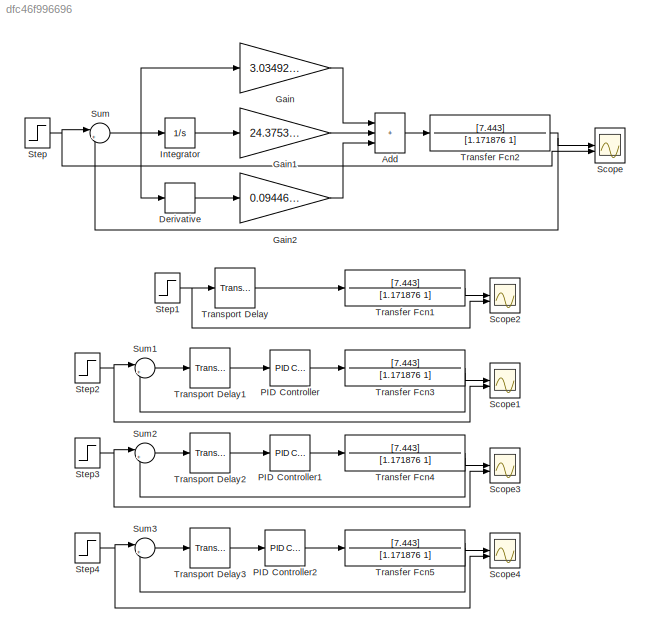
MODEL slx_dfc46f996696
KIND model
CONFIG AbsTol = auto
CONFIG EnableMultiTasking = off
CONFIG FixedStep = auto
CONFIG MaxStep = auto
CONFIG MinStep = auto
CONFIG RelTol = 1e-3
CONFIG SampleTimeConstraint = Unconstrained
CONFIG SolverName = VariableStepAuto
CONFIG StartTime = 0.0
CONFIG StopTime = 3
BLOCK [Sum] Add
  IconShape = rectangular
  Inputs = +++
BLOCK [Derivative] Derivative
BLOCK [Gain] Gain
  Gain = 3.034922642
BLOCK [Gain] Gain1
  Gain = 24.37532241
BLOCK [Gain] Gain2
  Gain = 0.094468037
BLOCK [Integrator] Integrator
BLOCK [Reference] PID Controller  REF=slpidlib/PID Controller
  LibrarySourceBlock = simulink/Continuous/PID Controller
  SourceBlock = slpidlib/PID Controller
  SourceType = PID 1dof
BLOCK [Reference] PID Controller1  REF=slpidlib/PID Controller
  LibrarySourceBlock = simulink/Continuous/PID Controller
  SourceBlock = slpidlib/PID Controller
  SourceType = PID 1dof
BLOCK [Reference] PID Controller2  REF=slpidlib/PID Controller
  LibrarySourceBlock = simulink/Continuous/PID Controller
  SourceBlock = slpidlib/PID Controller
  SourceType = PID 1dof
BLOCK [Scope] Scope
  Floating = off
  NumInputPorts = 2
  ScopeSpecificationString = Simulink.scopes.TimeScopeBlockCfg('CurrentConfiguration', extmgr.ConfigurationSet(extmgr.Configuration('Core','General UI',true),extmgr.Configuration('Core','Source UI',true),extmgr.Configuration('Sources','WiredSimulink',true,'SampleTime','0.025'),extmgr.Configuration('Visuals','Time Domain',true,'SerializedDisplays',{struct('MinYLimReal','-0.75917','MaxYLimReal','6.83254','YLabelReal','','MinYLi...<+1431ch>
BLOCK [Scope] Scope1
  Floating = off
  NumInputPorts = 2
  ScopeSpecificationString = Simulink.scopes.TimeScopeBlockCfg('CurrentConfiguration', extmgr.ConfigurationSet(extmgr.Configuration('Core','General UI',true),extmgr.Configuration('Core','Source UI',true),extmgr.Configuration('Sources','WiredSimulink',true,'DataLoggingVariableName','ScopeData1','SampleTime','0.025'),extmgr.Configuration('Visuals','Time Domain',true,'SerializedDisplays',{struct('MinYLimReal','-0.64368','MaxYLim...<+1497ch>
BLOCK [Scope] Scope2
  Floating = off
  NumInputPorts = 2
  ScopeSpecificationString = Simulink.scopes.TimeScopeBlockCfg('CurrentConfiguration', extmgr.ConfigurationSet(extmgr.Configuration('Core','General UI',true),extmgr.Configuration('Core','Source UI',true),extmgr.Configuration('Sources','WiredSimulink',true,'DataLoggingVariableName','ScopeData2','SampleTime','0.025'),extmgr.Configuration('Visuals','Time Domain',true,'SerializedDisplays',{struct('MinYLimReal','-4.27264','MaxYLim...<+1475ch>
BLOCK [Scope] Scope3
  Floating = off
  NumInputPorts = 2
  ScopeSpecificationString = Simulink.scopes.TimeScopeBlockCfg('CurrentConfiguration', extmgr.ConfigurationSet(extmgr.Configuration('Core','General UI',true),extmgr.Configuration('Core','Source UI',true),extmgr.Configuration('Sources','WiredSimulink',true,'DataLoggingVariableName','ScopeData3','SampleTime','0.025'),extmgr.Configuration('Visuals','Time Domain',true,'SerializedDisplays',{struct('MinYLimReal','-1.13224','MaxYLim...<+1475ch>
BLOCK [Scope] Scope4
  Floating = off
  NumInputPorts = 2
  ScopeSpecificationString = Simulink.scopes.TimeScopeBlockCfg('CurrentConfiguration', extmgr.ConfigurationSet(extmgr.Configuration('Core','General UI',true),extmgr.Configuration('Core','Source UI',true),extmgr.Configuration('Sources','WiredSimulink',true,'DataLoggingVariableName','ScopeData4','SampleTime','0.025'),extmgr.Configuration('Visuals','Time Domain',true,'SerializedDisplays',{struct('MinYLimReal','-0.88372','MaxYLim...<+1497ch>
BLOCK [Step] Step
  After = 5
  SampleTime = 0
  Time = 0
BLOCK [Step] Step1
  After = 5
  SampleTime = 0
  Time = 0
BLOCK [Step] Step2
  After = 5
  SampleTime = 0
  Time = 0
BLOCK [Step] Step3
  After = 5
  SampleTime = 0
  Time = 0
BLOCK [Step] Step4
  After = 5
  SampleTime = 0
  Time = 0
BLOCK [Sum] Sum
  Inputs = |+-
BLOCK [Sum] Sum1
  Inputs = |+-
BLOCK [Sum] Sum2
  Inputs = |+-
BLOCK [Sum] Sum3
  Inputs = |+-
BLOCK [TransferFcn] Transfer Fcn1
  Denominator = [1.171876 1]
  Numerator = [7.443]
BLOCK [TransferFcn] Transfer Fcn2
  Denominator = [1.171876 1]
  Numerator = [7.443]
BLOCK [TransferFcn] Transfer Fcn3
  Denominator = [1.171876 1]
  Numerator = [7.443]
BLOCK [TransferFcn] Transfer Fcn4
  Denominator = [1.171876 1]
  Numerator = [7.443]
BLOCK [TransferFcn] Transfer Fcn5
  Denominator = [1.171876 1]
  Numerator = [7.443]
BLOCK [TransportDelay] Transport Delay
  DelayTime = 0.062254
BLOCK [TransportDelay] Transport Delay1
  DelayTime = 0.062254
BLOCK [TransportDelay] Transport Delay2
  DelayTime = 0.062254
BLOCK [TransportDelay] Transport Delay3
  DelayTime = 0.062254
LINE Add:1 -> Transfer Fcn2:1
LINE Derivative:1 -> Gain2:1
LINE Gain1:1 -> Add:2
LINE Gain2:1 -> Add:3
LINE Gain:1 -> Add:1
LINE Integrator:1 -> Gain1:1
LINE PID Controller1:1 -> Transfer Fcn4:1
LINE PID Controller2:1 -> Transfer Fcn5:1
LINE PID Controller:1 -> Transfer Fcn3:1
NET Step1:1 -> Scope2:2, Transport Delay:1
NET Step2:1 -> Scope1:2, Sum1:1
NET Step3:1 -> Scope3:2, Sum2:1
NET Step4:1 -> Scope4:2, Sum3:1
NET Step:1 -> Scope:2, Sum:1
LINE Sum1:1 -> Transport Delay1:1
LINE Sum2:1 -> Transport Delay2:1
LINE Sum3:1 -> Transport Delay3:1
NET Sum:1 -> Derivative:1, Gain:1, Integrator:1
LINE Transfer Fcn1:1 -> Scope2:1
NET Transfer Fcn2:1 -> Scope:1, Sum:2
NET Transfer Fcn3:1 -> Scope1:1, Sum1:2
NET Transfer Fcn4:1 -> Scope3:1, Sum2:2
NET Transfer Fcn5:1 -> Scope4:1, Sum3:2
LINE Transport Delay1:1 -> PID Controller:1
LINE Transport Delay2:1 -> PID Controller1:1
LINE Transport Delay3:1 -> PID Controller2:1
LINE Transport Delay:1 -> Transfer Fcn1:1
note: NET lines group one-source signal fan-out (src -> all destinations, sorted); 1:1 wires keep LINE
